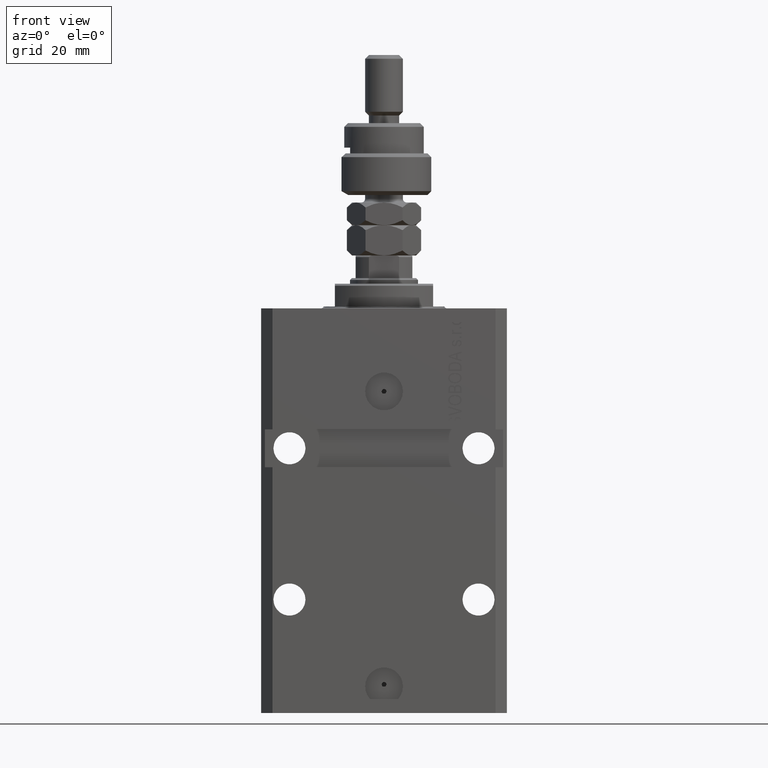
[diagram: clean part render]
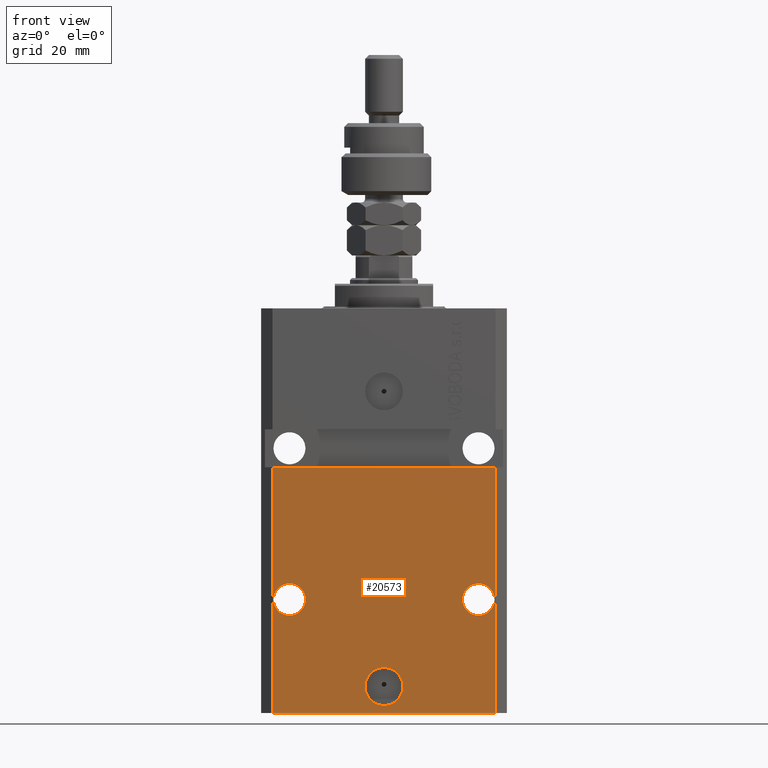
[diagram: same view with one face highlighted and labeled with its STEP entity id]
A machine part, front view. The second image highlights one B-rep face of the part: STEP entity #20573.
In plain terms, the highlighted planar face has unit normal (0, -1, 0).
Its self-contained STEP definition (entity closure, byte-faithful):
#1626 = AXIS2_PLACEMENT_3D ( 'NONE', #18384, #37486, #45491 ) ;
#1958 = CARTESIAN_POINT ( 'NONE',  ( 2.646188353185214061E-15, -22.49999999999949551, -99.99999999999998579 ) ) ;
#2046 = ORIENTED_EDGE ( 'NONE', *, *, #49096, .F. ) ;
#2053 = EDGE_LOOP ( 'NONE', ( #2046, #14526, #47272, #2452 ) ) ;
#2081 = DIRECTION ( 'NONE',  ( 0.000000000000000000, 0.000000000000000000, 1.000000000000000000 ) ) ;
#2260 = CARTESIAN_POINT ( 'NONE',  ( 29.24999999998906475, -22.49999999999949196, -76.99999999999998579 ) ) ;
#2295 = CARTESIAN_POINT ( 'NONE',  ( -29.49999999999650413, -22.49999999999949907, -107.0000000000000000 ) ) ;
#2452 = ORIENTED_EDGE ( 'NONE', *, *, #4919, .T. ) ;
#2624 = FACE_BOUND ( 'NONE', #26184, .T. ) ;
#3757 = VECTOR ( 'NONE', #2081, 1000.000000000000000 ) ;
#4574 = DIRECTION ( 'NONE',  ( -1.000000000000000000, 0.000000000000000000, 0.000000000000000000 ) ) ;
#4919 = EDGE_CURVE ( 'NONE', #8189, #42765, #9575, .T. ) ;
#5581 = DIRECTION ( 'NONE',  ( 1.176083712526788232E-16, -1.000000000000000000, 0.000000000000000000 ) ) ;
#6343 = CIRCLE ( 'NONE', #7170, 4.249999999976592058 ) ;
#6867 = VECTOR ( 'NONE', #36202, 1000.000000000000000 ) ;
#7170 = AXIS2_PLACEMENT_3D ( 'NONE', #20087, #19838, #4574 ) ;
#7277 = FACE_OUTER_BOUND ( 'NONE', #2053, .T. ) ;
#7525 = EDGE_CURVE ( 'NONE', #20599, #12371, #12080, .T. ) ;
#8189 = VERTEX_POINT ( 'NONE', #18755 ) ;
#9074 = DIRECTION ( 'NONE',  ( 1.176083712526788232E-16, -1.000000000000000000, 0.000000000000000000 ) ) ;
#9130 = VERTEX_POINT ( 'NONE', #39400 ) ;
#9417 = CARTESIAN_POINT ( 'NONE',  ( -29.49999999999650413, -22.49999999999949907, -107.0000000000000000 ) ) ;
#9575 = LINE ( 'NONE', #25329, #3757 ) ;
#9764 = CARTESIAN_POINT ( 'NONE',  ( 2.646188353185214061E-15, -22.49999999999949551, -99.99999999999998579 ) ) ;
#10022 = DIRECTION ( 'NONE',  ( 1.000000000000000000, 0.000000000000000000, 0.000000000000000000 ) ) ;
#10438 = LINE ( 'NONE', #33919, #28208 ) ;
#10626 = PLANE ( 'NONE',  #1626 ) ;
#11332 = CIRCLE ( 'NONE', #43502, 4.249999999976592058 ) ;
#11675 = EDGE_CURVE ( 'NONE', #9130, #19423, #6343, .T. ) ;
#12080 = CIRCLE ( 'NONE', #47519, 5.000000000000006217 ) ;
#12371 = VERTEX_POINT ( 'NONE', #16522 ) ;
#13203 = EDGE_CURVE ( 'NONE', #19423, #9130, #11332, .T. ) ;
#13291 = DIRECTION ( 'NONE',  ( 0.000000000000000000, 0.000000000000000000, 1.000000000000000000 ) ) ;
#13536 = CARTESIAN_POINT ( 'NONE',  ( -25.00000000000000000, -22.49999999999949907, -76.99999999999998579 ) ) ;
#14259 = FACE_BOUND ( 'NONE', #50135, .T. ) ;
#14510 = CARTESIAN_POINT ( 'NONE',  ( 5.000000000000008882, -22.49999999999949551, -99.99999999999998579 ) ) ;
#14526 = ORIENTED_EDGE ( 'NONE', *, *, #29516, .F. ) ;
#16253 = CARTESIAN_POINT ( 'NONE',  ( 20.75000000001094946, -22.49999999999949196, -76.99999999999998579 ) ) ;
#16522 = CARTESIAN_POINT ( 'NONE',  ( -5.000000000000003553, -22.49999999999949551, -99.99999999999998579 ) ) ;
#16720 = VERTEX_POINT ( 'NONE', #28371 ) ;
#17463 = DIRECTION ( 'NONE',  ( 1.000000000000000000, 0.000000000000000000, 0.000000000000000000 ) ) ;
#17743 = DIRECTION ( 'NONE',  ( 1.176083712526788232E-16, -1.000000000000000000, 0.000000000000000000 ) ) ;
#18384 = CARTESIAN_POINT ( 'NONE',  ( -29.49999999999650413, -22.49999999999949907, -107.0000000000000000 ) ) ;
#18755 = CARTESIAN_POINT ( 'NONE',  ( 29.49999999999650413, -22.49999999999949196, -107.0000000000000000 ) ) ;
#19423 = VERTEX_POINT ( 'NONE', #23079 ) ;
#19554 = VECTOR ( 'NONE', #13291, 1000.000000000000000 ) ;
#19838 = DIRECTION ( 'NONE',  ( 1.176083712526788232E-16, -1.000000000000000000, 0.000000000000000000 ) ) ;
#20087 = CARTESIAN_POINT ( 'NONE',  ( -25.00000000000000000, -22.49999999999949907, -76.99999999999998579 ) ) ;
#20573 = ADVANCED_FACE ( 'NONE', ( #2624, #37991, #14259, #7277 ), #10626, .T. ) ;
#20599 = VERTEX_POINT ( 'NONE', #14510 ) ;
#21236 = CARTESIAN_POINT ( 'NONE',  ( -32.49999999999650413, -22.49999999999949907, -41.99999999999999289 ) ) ;
#21618 = DIRECTION ( 'NONE',  ( 1.000000000000000000, 0.000000000000000000, 0.000000000000000000 ) ) ;
#22110 = CIRCLE ( 'NONE', #50974, 4.249999999989057642 ) ;
#23079 = CARTESIAN_POINT ( 'NONE',  ( -29.24999999997659472, -22.49999999999949907, -76.99999999999998579 ) ) ;
#25329 = CARTESIAN_POINT ( 'NONE',  ( 29.49999999999650413, -22.49999999999949196, -107.0000000000000000 ) ) ;
#25511 = DIRECTION ( 'NONE',  ( 1.176083712526788232E-16, -1.000000000000000000, 0.000000000000000000 ) ) ;
#26084 = ORIENTED_EDGE ( 'NONE', *, *, #35694, .F. ) ;
#26184 = EDGE_LOOP ( 'NONE', ( #50897, #26084 ) ) ;
#26453 = EDGE_CURVE ( 'NONE', #48777, #8189, #10438, .T. ) ;
#27716 = CARTESIAN_POINT ( 'NONE',  ( 29.49999999999650058, -22.49999999999949196, -41.99999999999998579 ) ) ;
#28208 = VECTOR ( 'NONE', #38831, 1000.000000000000000 ) ;
#28235 = LINE ( 'NONE', #21236, #6867 ) ;
#28298 = AXIS2_PLACEMENT_3D ( 'NONE', #29618, #17743, #21618 ) ;
#28371 = CARTESIAN_POINT ( 'NONE',  ( -29.49999999999650413, -22.49999999999949907, -41.99999999999999289 ) ) ;
#28502 = ORIENTED_EDGE ( 'NONE', *, *, #48926, .F. ) ;
#29516 = EDGE_CURVE ( 'NONE', #48777, #16720, #45285, .T. ) ;
#29618 = CARTESIAN_POINT ( 'NONE',  ( 25.00000000000000711, -22.49999999999949196, -76.99999999999998579 ) ) ;
#30535 = ORIENTED_EDGE ( 'NONE', *, *, #13203, .F. ) ;
#30695 = ORIENTED_EDGE ( 'NONE', *, *, #11675, .F. ) ;
#31246 = EDGE_CURVE ( 'NONE', #41471, #47108, #22110, .T. ) ;
#33919 = CARTESIAN_POINT ( 'NONE',  ( -29.49999999999650413, -22.49999999999949907, -107.0000000000000000 ) ) ;
#35694 = EDGE_CURVE ( 'NONE', #12371, #20599, #50171, .T. ) ;
#36202 = DIRECTION ( 'NONE',  ( 1.000000000000000000, 1.067522139062765303E-16, 1.067522139062765303E-16 ) ) ;
#37486 = DIRECTION ( 'NONE',  ( 1.176083712526788232E-16, -1.000000000000000000, 0.000000000000000000 ) ) ;
#37991 = FACE_BOUND ( 'NONE', #40951, .T. ) ;
#38831 = DIRECTION ( 'NONE',  ( 1.000000000000000000, 1.176083712526788232E-16, 0.000000000000000000 ) ) ;
#39400 = CARTESIAN_POINT ( 'NONE',  ( -20.75000000002340883, -22.49999999999949907, -76.99999999999998579 ) ) ;
#40951 = EDGE_LOOP ( 'NONE', ( #50761, #28502 ) ) ;
#41471 = VERTEX_POINT ( 'NONE', #2260 ) ;
#41908 = AXIS2_PLACEMENT_3D ( 'NONE', #1958, #5581, #17463 ) ;
#42765 = VERTEX_POINT ( 'NONE', #27716 ) ;
#43502 = AXIS2_PLACEMENT_3D ( 'NONE', #13536, #49143, #48387 ) ;
#43939 = CIRCLE ( 'NONE', #28298, 4.249999999989057642 ) ;
#45198 = DIRECTION ( 'NONE',  ( 1.000000000000000000, 0.000000000000000000, 0.000000000000000000 ) ) ;
#45285 = LINE ( 'NONE', #9417, #19554 ) ;
#45491 = DIRECTION ( 'NONE',  ( 1.000000000000000000, 1.176083712526788232E-16, 0.000000000000000000 ) ) ;
#47108 = VERTEX_POINT ( 'NONE', #16253 ) ;
#47272 = ORIENTED_EDGE ( 'NONE', *, *, #26453, .T. ) ;
#47519 = AXIS2_PLACEMENT_3D ( 'NONE', #9764, #25511, #10022 ) ;
#48387 = DIRECTION ( 'NONE',  ( -1.000000000000000000, 0.000000000000000000, 0.000000000000000000 ) ) ;
#48777 = VERTEX_POINT ( 'NONE', #2295 ) ;
#48926 = EDGE_CURVE ( 'NONE', #47108, #41471, #43939, .T. ) ;
#49096 = EDGE_CURVE ( 'NONE', #16720, #42765, #28235, .T. ) ;
#49143 = DIRECTION ( 'NONE',  ( 1.176083712526788232E-16, -1.000000000000000000, 0.000000000000000000 ) ) ;
#49321 = CARTESIAN_POINT ( 'NONE',  ( 25.00000000000000711, -22.49999999999949196, -76.99999999999998579 ) ) ;
#50135 = EDGE_LOOP ( 'NONE', ( #30695, #30535 ) ) ;
#50171 = CIRCLE ( 'NONE', #41908, 5.000000000000006217 ) ;
#50761 = ORIENTED_EDGE ( 'NONE', *, *, #31246, .F. ) ;
#50897 = ORIENTED_EDGE ( 'NONE', *, *, #7525, .F. ) ;
#50974 = AXIS2_PLACEMENT_3D ( 'NONE', #49321, #9074, #45198 ) ;